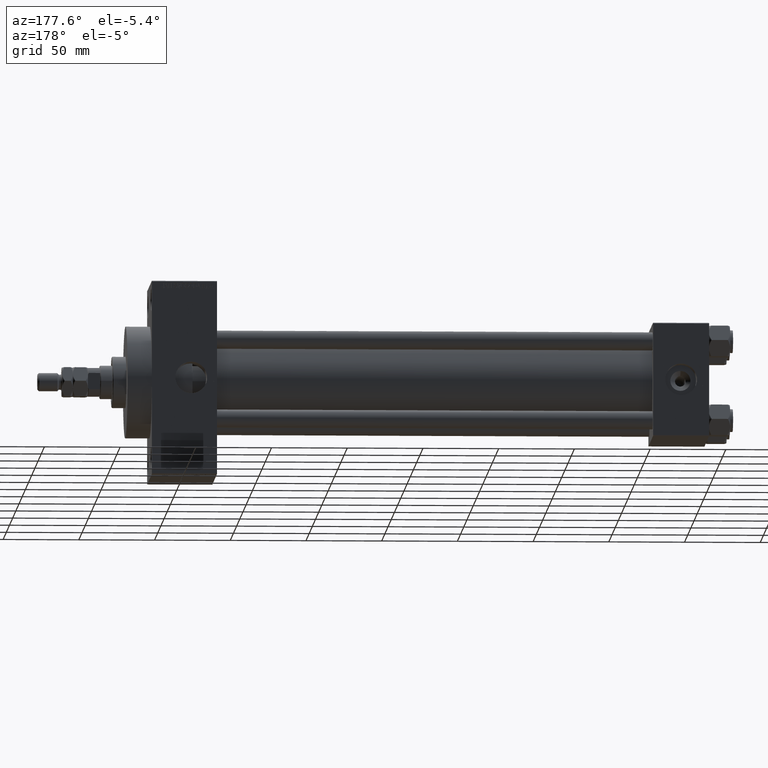
[diagram: clean part render]
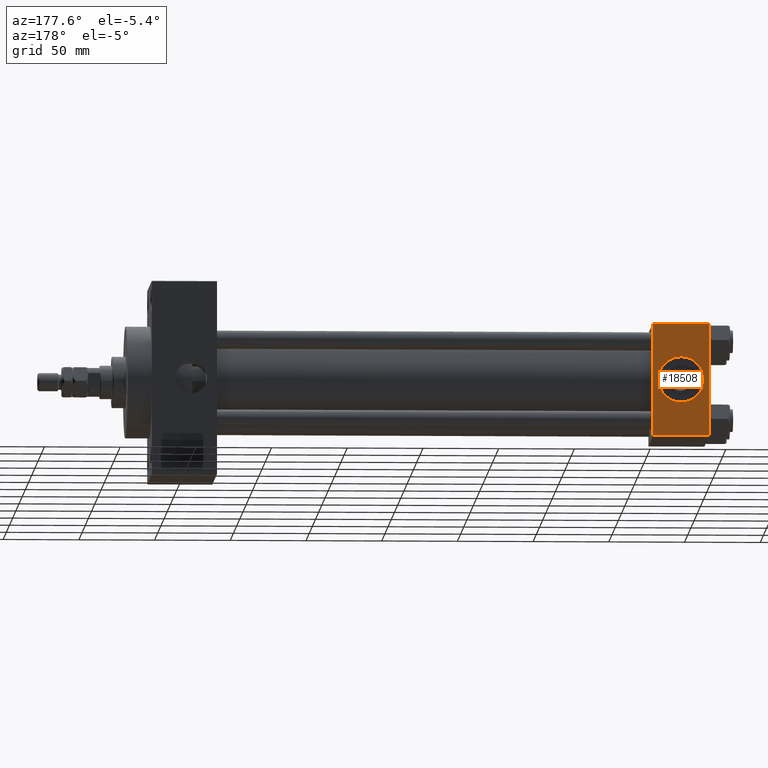
[diagram: same view with one face highlighted and labeled with its STEP entity id]
A machine part, auxiliary view. The second image highlights one B-rep face of the part: STEP entity #18508.
In plain terms, the highlighted planar face has unit normal (0, 1, 0).
Its self-contained STEP definition (entity closure, byte-faithful):
#347 = DIRECTION ( 'NONE',  ( -1.000000000000000000, 0.000000000000000000, 0.000000000000000000 ) ) ;
#473 = VERTEX_POINT ( 'NONE', #5869 ) ;
#503 = DIRECTION ( 'NONE',  ( 0.000000000000000000, -0.000000000000000000, 1.000000000000000000 ) ) ;
#725 = VECTOR ( 'NONE', #45805, 1000.000000000000000 ) ;
#3381 = ORIENTED_EDGE ( 'NONE', *, *, #23860, .F. ) ;
#3696 = CARTESIAN_POINT ( 'NONE',  ( 0.000000000000000000, 37.49999999999999289, -36.99999999999998579 ) ) ;
#5435 = CARTESIAN_POINT ( 'NONE',  ( 37.00000000000000000, 37.49999999999999289, -36.99999999999998579 ) ) ;
#5869 = CARTESIAN_POINT ( 'NONE',  ( 18.50000000000000000, 37.49999999999999289, 15.00000000000000178 ) ) ;
#6136 = DIRECTION ( 'NONE',  ( 0.000000000000000000, 1.000000000000000000, 0.000000000000000000 ) ) ;
#6585 = AXIS2_PLACEMENT_3D ( 'NONE', #36755, #6136, #9997 ) ;
#7369 = EDGE_CURVE ( 'NONE', #30018, #26341, #29429, .T. ) ;
#7469 = EDGE_LOOP ( 'NONE', ( #27320, #21775 ) ) ;
#7710 = ORIENTED_EDGE ( 'NONE', *, *, #7369, .T. ) ;
#9997 = DIRECTION ( 'NONE',  ( 0.000000000000000000, 0.000000000000000000, 1.000000000000000000 ) ) ;
#10585 = DIRECTION ( 'NONE',  ( 0.000000000000000000, 0.000000000000000000, 1.000000000000000000 ) ) ;
#12015 = VERTEX_POINT ( 'NONE', #3696 ) ;
#16458 = CIRCLE ( 'NONE', #6585, 15.00000000000000178 ) ;
#18508 = ADVANCED_FACE ( 'NONE', ( #34730, #27009 ), #42712, .T. ) ;
#21439 = EDGE_CURVE ( 'NONE', #23630, #473, #24423, .T. ) ;
#21775 = ORIENTED_EDGE ( 'NONE', *, *, #21439, .F. ) ;
#22069 = VECTOR ( 'NONE', #34051, 1000.000000000000000 ) ;
#23630 = VERTEX_POINT ( 'NONE', #30602 ) ;
#23674 = AXIS2_PLACEMENT_3D ( 'NONE', #29009, #24644, #503 ) ;
#23860 = EDGE_CURVE ( 'NONE', #26906, #12015, #44784, .T. ) ;
#24423 = CIRCLE ( 'NONE', #31010, 15.00000000000000178 ) ;
#24644 = DIRECTION ( 'NONE',  ( -0.000000000000000000, 1.000000000000000000, 0.000000000000000000 ) ) ;
#26264 = CARTESIAN_POINT ( 'NONE',  ( 18.50000000000000000, 37.49999999999999289, 0.000000000000000000 ) ) ;
#26341 = VERTEX_POINT ( 'NONE', #5435 ) ;
#26587 = EDGE_CURVE ( 'NONE', #473, #23630, #16458, .T. ) ;
#26906 = VERTEX_POINT ( 'NONE', #49989 ) ;
#27009 = FACE_OUTER_BOUND ( 'NONE', #31314, .T. ) ;
#27320 = ORIENTED_EDGE ( 'NONE', *, *, #26587, .F. ) ;
#29009 = CARTESIAN_POINT ( 'NONE',  ( 37.00000000000000000, 37.49999999999999289, 37.50000000000000000 ) ) ;
#29429 = LINE ( 'NONE', #38162, #22069 ) ;
#29778 = ORIENTED_EDGE ( 'NONE', *, *, #40057, .T. ) ;
#30018 = VERTEX_POINT ( 'NONE', #33904 ) ;
#30602 = CARTESIAN_POINT ( 'NONE',  ( 18.50000000000000355, 37.49999999999999289, -15.00000000000000178 ) ) ;
#31010 = AXIS2_PLACEMENT_3D ( 'NONE', #26264, #45820, #10585 ) ;
#31281 = DIRECTION ( 'NONE',  ( 1.000000000000000000, 0.000000000000000000, 0.000000000000000000 ) ) ;
#31314 = EDGE_LOOP ( 'NONE', ( #7710, #29778, #3381, #50719 ) ) ;
#33904 = CARTESIAN_POINT ( 'NONE',  ( 37.00000000000000000, 37.49999999999999289, 37.00000000000000000 ) ) ;
#34051 = DIRECTION ( 'NONE',  ( 0.000000000000000000, 0.000000000000000000, -1.000000000000000000 ) ) ;
#34379 = CARTESIAN_POINT ( 'NONE',  ( 37.00000000000000000, 37.49999999999999289, 37.00000000000000000 ) ) ;
#34632 = LINE ( 'NONE', #34379, #47849 ) ;
#34730 = FACE_BOUND ( 'NONE', #7469, .T. ) ;
#36209 = EDGE_CURVE ( 'NONE', #26906, #30018, #34632, .T. ) ;
#36321 = CARTESIAN_POINT ( 'NONE',  ( 37.00000000000000000, 37.49999999999999289, -36.99999999999998579 ) ) ;
#36755 = CARTESIAN_POINT ( 'NONE',  ( 18.50000000000000000, 37.49999999999999289, 0.000000000000000000 ) ) ;
#38162 = CARTESIAN_POINT ( 'NONE',  ( 37.00000000000000000, 37.49999999999999289, 37.50000000000000000 ) ) ;
#40057 = EDGE_CURVE ( 'NONE', #26341, #12015, #47899, .T. ) ;
#42712 = PLANE ( 'NONE',  #23674 ) ;
#44784 = LINE ( 'NONE', #45550, #725 ) ;
#45550 = CARTESIAN_POINT ( 'NONE',  ( 0.000000000000000000, 37.49999999999999289, 37.50000000000000000 ) ) ;
#45617 = VECTOR ( 'NONE', #347, 1000.000000000000000 ) ;
#45805 = DIRECTION ( 'NONE',  ( 0.000000000000000000, 0.000000000000000000, -1.000000000000000000 ) ) ;
#45820 = DIRECTION ( 'NONE',  ( 0.000000000000000000, 1.000000000000000000, 0.000000000000000000 ) ) ;
#47849 = VECTOR ( 'NONE', #31281, 1000.000000000000000 ) ;
#47899 = LINE ( 'NONE', #36321, #45617 ) ;
#49989 = CARTESIAN_POINT ( 'NONE',  ( 0.000000000000000000, 37.49999999999999289, 37.00000000000000000 ) ) ;
#50719 = ORIENTED_EDGE ( 'NONE', *, *, #36209, .T. ) ;